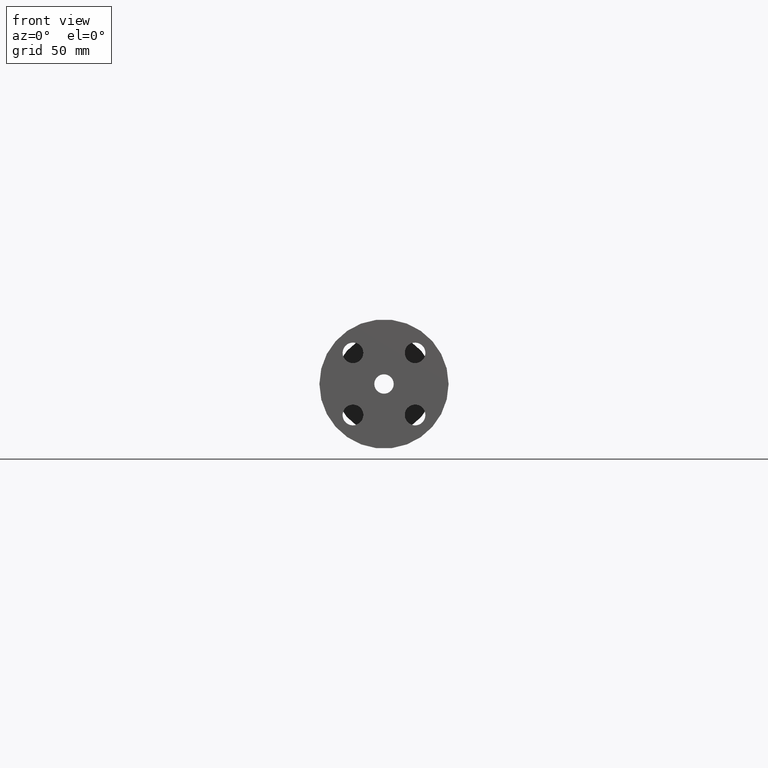
[diagram: clean part render]
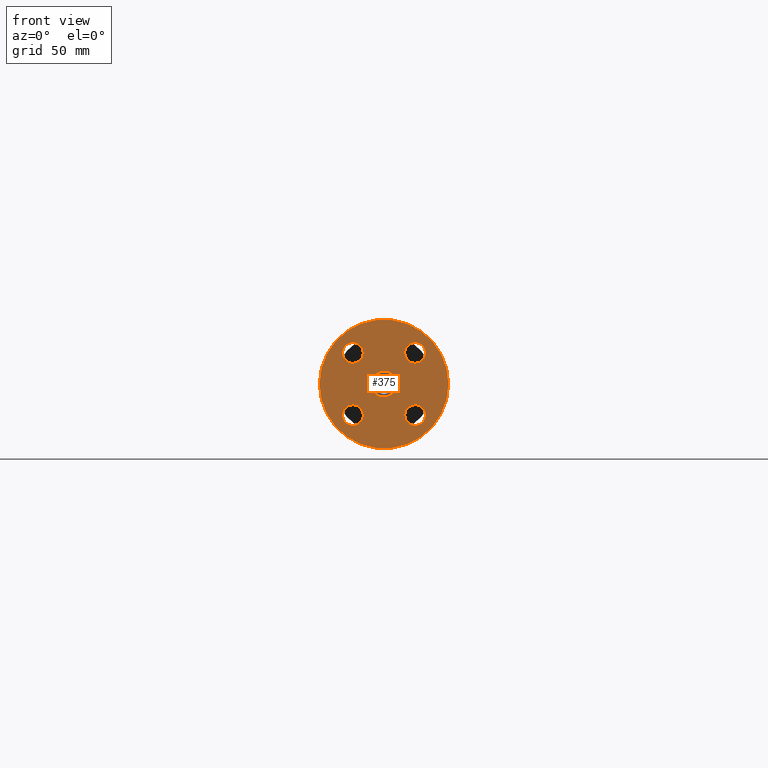
[diagram: same view with one face highlighted and labeled with its STEP entity id]
A machine part, front view. The second image highlights one B-rep face of the part: STEP entity #375.
In plain terms, the highlighted planar face has unit normal (-0, -1, -0).
Its self-contained STEP definition (entity closure, byte-faithful):
#180=CARTESIAN_POINT('',(-0.841457069611991,-1.071566E-016,-0.561457069611992));
#181=VERTEX_POINT('',#180);
#182=CARTESIAN_POINT('',(-0.841457069611991,-1.071566E-016,-0.841457069611992));
#183=DIRECTION('',(0.0,1.0,0.0));
#184=DIRECTION('',(0.0,0.0,-1.0));
#185=AXIS2_PLACEMENT_3D('',#182,#183,#184);
#186=CIRCLE('',#185,0.280000000000000);
#187=EDGE_CURVE('',#181,#181,#186,.T.);
#208=CARTESIAN_POINT('',(0.561457069611992,-1.071566E-016,-0.841457069611991));
#209=VERTEX_POINT('',#208);
#210=CARTESIAN_POINT('',(0.841457069611991,-1.071566E-016,-0.841457069611991));
#211=DIRECTION('',(0.0,1.0,0.0));
#212=DIRECTION('',(1.0,0.0,0.0));
#213=AXIS2_PLACEMENT_3D('',#210,#211,#212);
#214=CIRCLE('',#213,0.280000000000000);
#215=EDGE_CURVE('',#209,#209,#214,.T.);
#236=CARTESIAN_POINT('',(0.841457069611991,-1.071566E-016,0.561457069611991));
#237=VERTEX_POINT('',#236);
#238=CARTESIAN_POINT('',(0.841457069611991,-1.071566E-016,0.841457069611991));
#239=DIRECTION('',(0.0,1.0,0.0));
#240=DIRECTION('',(0.0,0.0,1.0));
#241=AXIS2_PLACEMENT_3D('',#238,#239,#240);
#242=CIRCLE('',#241,0.280000000000000);
#243=EDGE_CURVE('',#237,#237,#242,.T.);
#264=CARTESIAN_POINT('',(-0.561457069611991,-1.071566E-016,0.841457069611991));
#265=VERTEX_POINT('',#264);
#266=CARTESIAN_POINT('',(-0.841457069611991,-1.071566E-016,0.841457069611991));
#267=DIRECTION('',(0.0,1.0,0.0));
#268=DIRECTION('',(-1.0,0.0,0.0));
#269=AXIS2_PLACEMENT_3D('',#266,#267,#268);
#270=CIRCLE('',#269,0.280000000000000);
#271=EDGE_CURVE('',#265,#265,#270,.T.);
#329=CARTESIAN_POINT('',(-0.351505941825997,0.0,0.0));
#330=VERTEX_POINT('',#329);
#331=CARTESIAN_POINT('',(0.0,0.0,0.0));
#332=DIRECTION('',(0.0,1.0,0.0));
#333=DIRECTION('',(-1.0,0.0,0.0));
#334=AXIS2_PLACEMENT_3D('',#331,#332,#333);
#335=CIRCLE('',#334,0.351505941825997);
#336=EDGE_CURVE('',#330,#330,#335,.T.);
#344=CARTESIAN_POINT('',(-1.050752970912999,-1.071566E-016,0.0));
#345=DIRECTION('',(0.0,-1.0,0.0));
#346=DIRECTION('',(0.0,0.0,-1.0));
#347=AXIS2_PLACEMENT_3D('',#344,#345,#346);
#348=PLANE('',#347);
#349=CARTESIAN_POINT('',(-1.750000000000000,-2.143132E-016,0.0));
#350=VERTEX_POINT('',#349);
#351=CARTESIAN_POINT('',(0.0,-1.748383E-016,0.0));
#352=DIRECTION('',(0.0,1.0,0.0));
#353=DIRECTION('',(-1.0,0.0,0.0));
#354=AXIS2_PLACEMENT_3D('',#351,#352,#353);
#355=CIRCLE('',#354,1.750000000000000);
#356=EDGE_CURVE('',#350,#350,#355,.T.);
#357=ORIENTED_EDGE('',*,*,#356,.F.);
#358=EDGE_LOOP('',(#357));
#359=FACE_OUTER_BOUND('',#358,.T.);
#360=ORIENTED_EDGE('',*,*,#187,.T.);
#361=EDGE_LOOP('',(#360));
#362=FACE_BOUND('',#361,.T.);
#363=ORIENTED_EDGE('',*,*,#215,.T.);
#364=EDGE_LOOP('',(#363));
#365=FACE_BOUND('',#364,.T.);
#366=ORIENTED_EDGE('',*,*,#243,.T.);
#367=EDGE_LOOP('',(#366));
#368=FACE_BOUND('',#367,.T.);
#369=ORIENTED_EDGE('',*,*,#271,.T.);
#370=EDGE_LOOP('',(#369));
#371=FACE_BOUND('',#370,.T.);
#372=ORIENTED_EDGE('',*,*,#336,.T.);
#373=EDGE_LOOP('',(#372));
#374=FACE_BOUND('',#373,.T.);
#375=ADVANCED_FACE('',(#359,#362,#365,#368,#371,#374),#348,.T.);